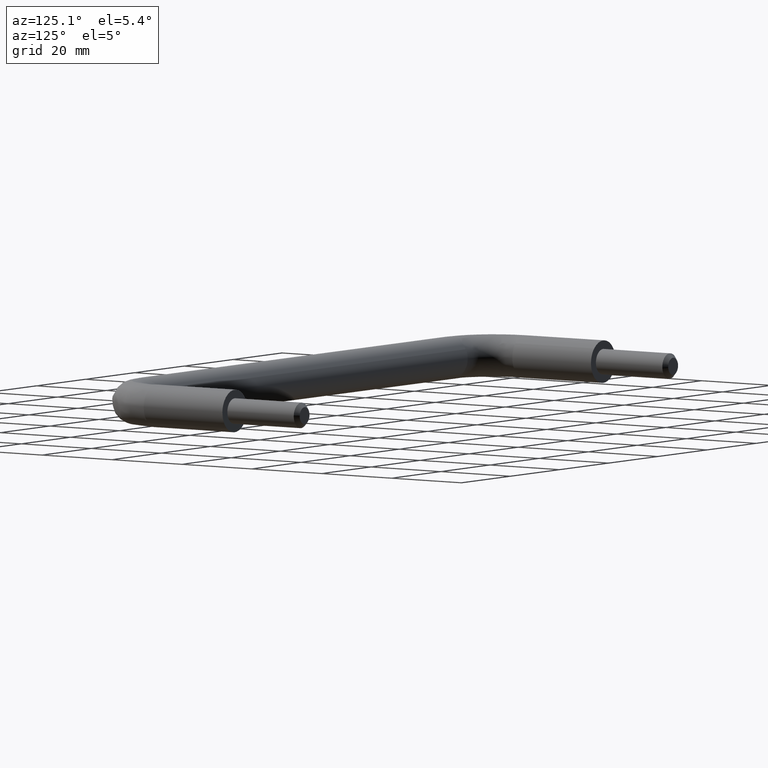
[diagram: clean part render]
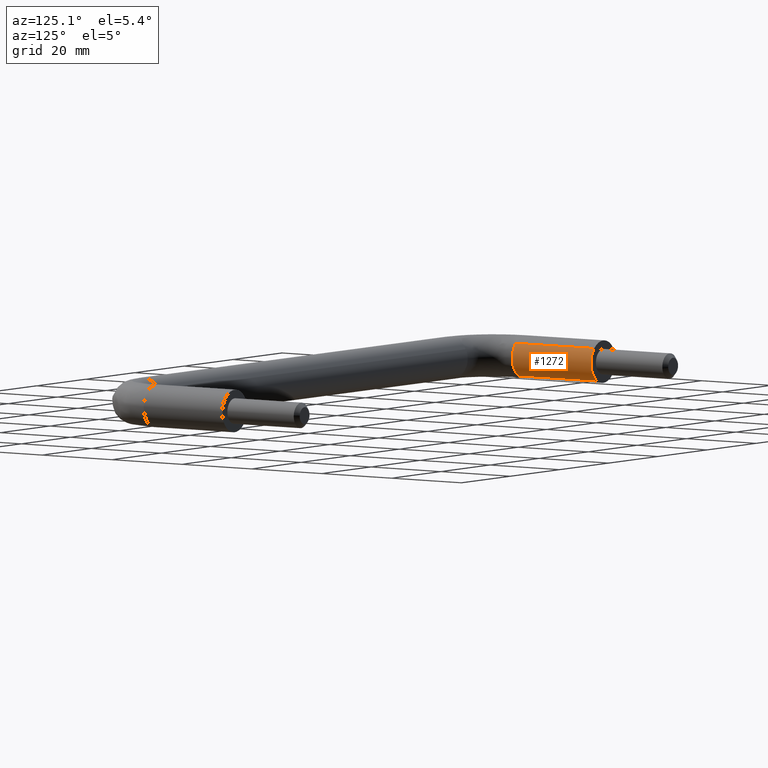
[diagram: same view with one face highlighted and labeled with its STEP entity id]
A machine part, auxiliary view. The second image highlights one B-rep face of the part: STEP entity #1272.
In plain terms, the highlighted face is a freeform B-spline surface patch.
Its self-contained STEP definition (entity closure, byte-faithful):
#1174=CARTESIAN_POINT('',(2.382043512187918,0.562500000012942,-4.396346344942474));
#1175=CARTESIAN_POINT('',(2.401595607419808,0.562500000012942,-4.385525670646032));
#1176=CARTESIAN_POINT('',(2.940378048686832,0.562500000012942,-4.087348455138017));
#1177=CARTESIAN_POINT('',(3.377951038078300,0.562500000012942,-3.686386684050619));
#1178=CARTESIAN_POINT('',(7.064337722128919,0.562500000012943,-0.308435645972318));
#1179=CARTESIAN_POINT('',(3.672557502493991,0.562500000012943,3.393042941473882));
#1180=CARTESIAN_POINT('',(3.658775143812289,0.562500000012942,3.408083746668004));
#1181=CARTESIAN_POINT('',(2.382043512187921,-23.076562500530891,-4.396346344942474));
#1182=CARTESIAN_POINT('',(2.401595607419810,-23.076562500530891,-4.385525670646032));
#1183=CARTESIAN_POINT('',(2.940378048686835,-23.076562500530894,-4.087348455138017));
#1184=CARTESIAN_POINT('',(3.377951038078304,-23.076562500530891,-3.686386684050619));
#1185=CARTESIAN_POINT('',(7.064337722128923,-23.076562500530898,-0.308435645972318));
#1186=CARTESIAN_POINT('',(3.672557502493994,-23.076562500530901,3.393042941473882));
#1187=CARTESIAN_POINT('',(3.658775143812291,-23.076562500530883,3.408083746668004));
#1195=(BOUNDED_SURFACE()B_SPLINE_SURFACE(2,1,((#1174,#1181),(#1175,#1182),(#1176,#1183),(#1177,#1184),(#1178,#1185),(#1179,#1186),(#1180,#1187)),.UNSPECIFIED.,.F.,.F.,.U.)B_SPLINE_SURFACE_WITH_KNOTS((3,1,2,1,3),(2,2),(0.0,0.048057650410643,1.373541050004548,9.657812297466446,9.705857444370116),(0.0,23.639062500543840),.UNSPECIFIED.)GEOMETRIC_REPRESENTATION_ITEM()RATIONAL_B_SPLINE_SURFACE(((0.918959534229402,0.918959534229402),(0.920114918506173,0.920114918506173),(0.953137084989848,0.953137084989848),(1.0,1.0),(0.707106781186548,0.707106781186548),(1.001698652458934,1.001698652458934),(1.003397304917869,1.003397304917869)))REPRESENTATION_ITEM('')SURFACE());
#1196=CARTESIAN_POINT('',(2.421098661279285,-22.500000000000298,-4.374732137211565));
#1197=VERTEX_POINT('',#1196);
#1198=CARTESIAN_POINT('',(5.000000000000003,-22.500000000000298,0.0));
#1199=VERTEX_POINT('',#1198);
#1200=CARTESIAN_POINT('',(2.421098661279285,-22.500000000000302,-4.374732137211565));
#1201=CARTESIAN_POINT('',(5.000000000000003,-22.500000000000298,-2.947496278434457));
#1202=CARTESIAN_POINT('',(5.000000000000003,-22.500000000000298,0.0));
#1210=(BOUNDED_CURVE()B_SPLINE_CURVE(2,(#1200,#1201,#1202),.UNSPECIFIED.,.F.,.U.)B_SPLINE_CURVE_WITH_KNOTS((3,3),(0.332484288971161,0.500000000000000),.UNSPECIFIED.)CURVE()GEOMETRIC_REPRESENTATION_ITEM()RATIONAL_B_SPLINE_CURVE((0.870495137452543,0.803743136779756,1.0))REPRESENTATION_ITEM(''));
#1211=EDGE_CURVE('',#1197,#1199,#1210,.T.);
#1212=ORIENTED_EDGE('',*,*,#1211,.F.);
#1213=CARTESIAN_POINT('',(2.421091485330488,-6.025501E-017,-4.374736108566200));
#1214=VERTEX_POINT('',#1213);
#1215=CARTESIAN_POINT('',(2.421091485330488,-6.025501E-017,-4.374736108566200));
#1216=CARTESIAN_POINT('',(2.421098661279285,-22.500000000000298,-4.374732137211565));
#1217=QUASI_UNIFORM_CURVE('',1,(#1215,#1216),.UNSPECIFIED.,.F.,.U.);
#1218=EDGE_CURVE('',#1214,#1197,#1217,.T.);
#1219=ORIENTED_EDGE('',*,*,#1218,.F.);
#1220=CARTESIAN_POINT('',(5.0,0.0,0.0));
#1221=VERTEX_POINT('',#1220);
#1222=CARTESIAN_POINT('',(2.421091485330488,-6.025501E-017,-4.374736108566200));
#1223=CARTESIAN_POINT('',(5.000000000000001,0.0,-2.947501804295129));
#1224=CARTESIAN_POINT('',(5.0,0.0,0.0));
#1232=(BOUNDED_CURVE()B_SPLINE_CURVE(2,(#1222,#1223,#1224),.UNSPECIFIED.,.F.,.U.)B_SPLINE_CURVE_WITH_KNOTS((3,3),(0.332484036553738,0.500000000000000),.UNSPECIFIED.)CURVE()GEOMETRIC_REPRESENTATION_ITEM()RATIONAL_B_SPLINE_CURVE((0.870495338620754,0.803742841054351,1.0))REPRESENTATION_ITEM(''));
#1233=EDGE_CURVE('',#1214,#1221,#1232,.T.);
#1234=ORIENTED_EDGE('',*,*,#1233,.T.);
#1235=CARTESIAN_POINT('',(3.686388820656259,5.551115E-017,3.377948706379442));
#1236=VERTEX_POINT('',#1235);
#1237=CARTESIAN_POINT('',(5.0,0.0,0.0));
#1238=CARTESIAN_POINT('',(5.0,0.0,1.944391838842776));
#1239=CARTESIAN_POINT('',(3.686388820656260,5.551115E-017,3.377948706379442));
#1247=(BOUNDED_CURVE()B_SPLINE_CURVE(2,(#1237,#1238,#1239),.UNSPECIFIED.,.F.,.U.)B_SPLINE_CURVE_WITH_KNOTS((3,3),(0.500000000000000,0.618415113599380),.UNSPECIFIED.)CURVE()GEOMETRIC_REPRESENTATION_ITEM()RATIONAL_B_SPLINE_CURVE((1.0,0.861268064886868,0.853959792624003))REPRESENTATION_ITEM(''));
#1248=EDGE_CURVE('',#1221,#1236,#1247,.T.);
#1249=ORIENTED_EDGE('',*,*,#1248,.T.);
#1250=CARTESIAN_POINT('',(3.686388789542580,-22.500000000097330,3.377948740302295));
#1251=VERTEX_POINT('',#1250);
#1252=CARTESIAN_POINT('',(3.686388820656259,5.551115E-017,3.377948706379442));
#1253=CARTESIAN_POINT('',(3.686388789542580,-22.500000000097330,3.377948740302295));
#1254=QUASI_UNIFORM_CURVE('',1,(#1252,#1253),.UNSPECIFIED.,.F.,.U.);
#1255=EDGE_CURVE('',#1236,#1251,#1254,.T.);
#1256=ORIENTED_EDGE('',*,*,#1255,.T.);
#1257=CARTESIAN_POINT('',(5.000000000000003,-22.500000000000298,0.0));
#1258=CARTESIAN_POINT('',(5.000000000000003,-22.500000000000295,1.944391865315340));
#1259=CARTESIAN_POINT('',(3.686388789542579,-22.500000000097334,3.377948740302295));
#1267=(BOUNDED_CURVE()B_SPLINE_CURVE(2,(#1257,#1258,#1259),.UNSPECIFIED.,.F.,.U.)B_SPLINE_CURVE_WITH_KNOTS((3,3),(0.500000000000000,0.618415114987918),.UNSPECIFIED.)CURVE()GEOMETRIC_REPRESENTATION_ITEM()RATIONAL_B_SPLINE_CURVE((1.0,0.861268063260095,0.853959792452609))REPRESENTATION_ITEM(''));
#1268=EDGE_CURVE('',#1199,#1251,#1267,.T.);
#1269=ORIENTED_EDGE('',*,*,#1268,.F.);
#1270=EDGE_LOOP('',(#1212,#1219,#1234,#1249,#1256,#1269));
#1271=FACE_OUTER_BOUND('',#1270,.T.);
#1272=ADVANCED_FACE('',(#1271),#1195,.T.);